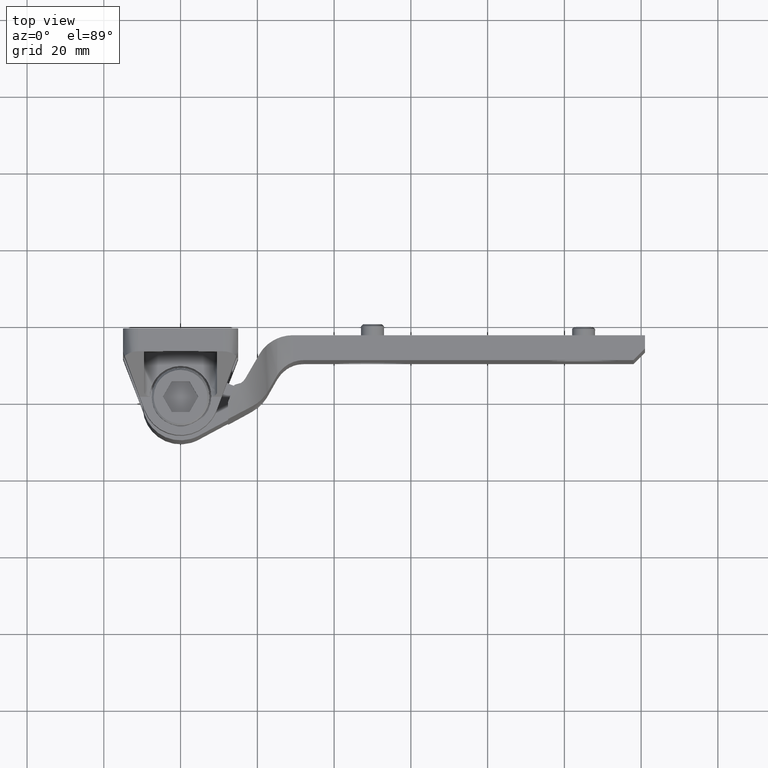
[diagram: clean part render]
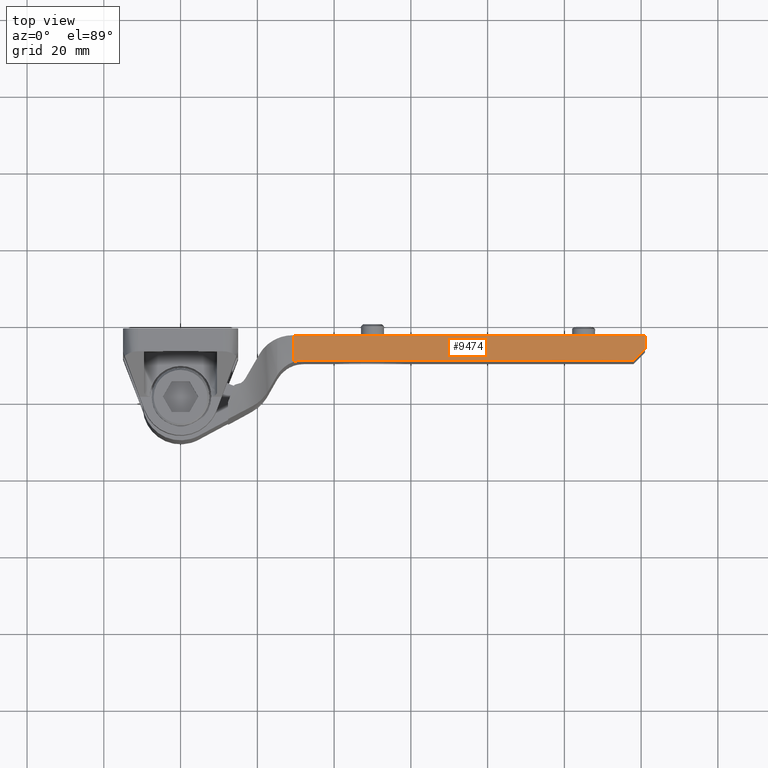
[diagram: same view with one face highlighted and labeled with its STEP entity id]
A machine part, top view. The second image highlights one B-rep face of the part: STEP entity #9474.
In plain terms, the highlighted face is a freeform B-spline surface patch.
Its self-contained STEP definition (entity closure, byte-faithful):
#9361=CARTESIAN_POINT('',(29.450001294119801,16.300000831205349,29.999985920499700));
#9362=VERTEX_POINT('',#9361);
#9392=CARTESIAN_POINT('',(29.450001294119801,9.348344690298980,29.999985920499700));
#9393=VERTEX_POINT('',#9392);
#9417=CARTESIAN_POINT('',(29.450001294119801,9.348344690298980,29.999985920499700));
#9418=CARTESIAN_POINT('',(29.450001294119801,16.300000831205349,29.999985920499700));
#9419=QUASI_UNIFORM_CURVE('',1,(#9417,#9418),.UNSPECIFIED.,.F.,.U.);
#9420=EDGE_CURVE('',#9393,#9362,#9419,.T.);
#9425=CARTESIAN_POINT('',(24.877077897325830,16.647236343419639,29.999985920499700));
#9426=CARTESIAN_POINT('',(125.572930628850200,16.647236343419639,29.999985920499700));
#9427=CARTESIAN_POINT('',(24.877077897325830,9.001109799611186,29.999985920499700));
#9428=CARTESIAN_POINT('',(125.572930628850200,9.001109799611186,29.999985920499700));
#9429=B_SPLINE_SURFACE_WITH_KNOTS('',1,1,((#9425,#9427),(#9426,#9428)),.UNSPECIFIED.,.F.,.F.,.U.,(2,2),(2,2),(0.0,100.695852731524400),(0.0,7.646126543808450),.UNSPECIFIED.);
#9430=ORIENTED_EDGE('',*,*,#9420,.F.);
#9431=CARTESIAN_POINT('',(32.100001419988651,9.800000522471919,29.999985920499700));
#9432=VERTEX_POINT('',#9431);
#9433=CARTESIAN_POINT('',(29.450001294119801,9.348344690298980,29.999985920499700));
#9434=CARTESIAN_POINT('',(30.736512115346748,9.800000522472786,29.999985920499704));
#9435=CARTESIAN_POINT('',(32.100001419988651,9.800000522471919,29.999985920499700));
#9443=(BOUNDED_CURVE()B_SPLINE_CURVE(2,(#9433,#9434,#9435),.UNSPECIFIED.,.F.,.U.)CURVE()GEOMETRIC_REPRESENTATION_ITEM()QUASI_UNIFORM_CURVE()RATIONAL_B_SPLINE_CURVE((1.0,0.985784718805579,1.0))REPRESENTATION_ITEM(''));
#9444=EDGE_CURVE('',#9393,#9432,#9443,.T.);
#9445=ORIENTED_EDGE('',*,*,#9444,.T.);
#9446=CARTESIAN_POINT('',(118.000005452522400,9.800000522471919,29.999985920499700));
#9447=VERTEX_POINT('',#9446);
#9448=CARTESIAN_POINT('',(32.100001419988651,9.800000522471919,29.999985920499700));
#9449=CARTESIAN_POINT('',(118.000005452522400,9.800000522471919,29.999985920499700));
#9450=QUASI_UNIFORM_CURVE('',1,(#9448,#9449),.UNSPECIFIED.,.F.,.U.);
#9451=EDGE_CURVE('',#9432,#9447,#9450,.T.);
#9452=ORIENTED_EDGE('',*,*,#9451,.T.);
#9453=CARTESIAN_POINT('',(121.000005595014600,12.800000664952901,29.999985920499700));
#9454=VERTEX_POINT('',#9453);
#9455=CARTESIAN_POINT('',(118.000005452522400,9.800000522471919,29.999985920499700));
#9456=CARTESIAN_POINT('',(121.000005595014600,12.800000664952901,29.999985920499700));
#9457=QUASI_UNIFORM_CURVE('',1,(#9455,#9456),.UNSPECIFIED.,.F.,.U.);
#9458=EDGE_CURVE('',#9447,#9454,#9457,.T.);
#9459=ORIENTED_EDGE('',*,*,#9458,.T.);
#9460=CARTESIAN_POINT('',(121.000005595014600,16.300000831205349,29.999985920499700));
#9461=VERTEX_POINT('',#9460);
#9462=CARTESIAN_POINT('',(121.000005595014600,12.800000664952901,29.999985920499700));
#9463=CARTESIAN_POINT('',(121.000005595014600,16.300000831205349,29.999985920499700));
#9464=QUASI_UNIFORM_CURVE('',1,(#9462,#9463),.UNSPECIFIED.,.F.,.U.);
#9465=EDGE_CURVE('',#9454,#9461,#9464,.T.);
#9466=ORIENTED_EDGE('',*,*,#9465,.T.);
#9467=CARTESIAN_POINT('',(29.450001294119801,16.300000831205349,29.999985920499700));
#9468=CARTESIAN_POINT('',(121.000005595014600,16.300000831205349,29.999985920499700));
#9469=QUASI_UNIFORM_CURVE('',1,(#9467,#9468),.UNSPECIFIED.,.F.,.U.);
#9470=EDGE_CURVE('',#9362,#9461,#9469,.T.);
#9471=ORIENTED_EDGE('',*,*,#9470,.F.);
#9472=EDGE_LOOP('',(#9430,#9445,#9452,#9459,#9466,#9471));
#9473=FACE_OUTER_BOUND('',#9472,.T.);
#9474=ADVANCED_FACE('',(#9473),#9429,.F.);